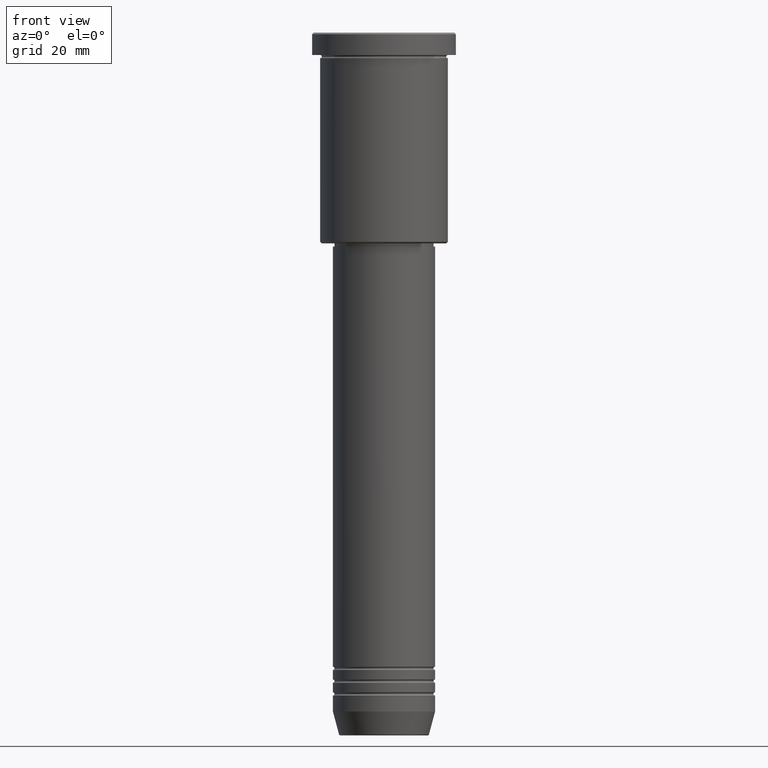
[diagram: clean part render]
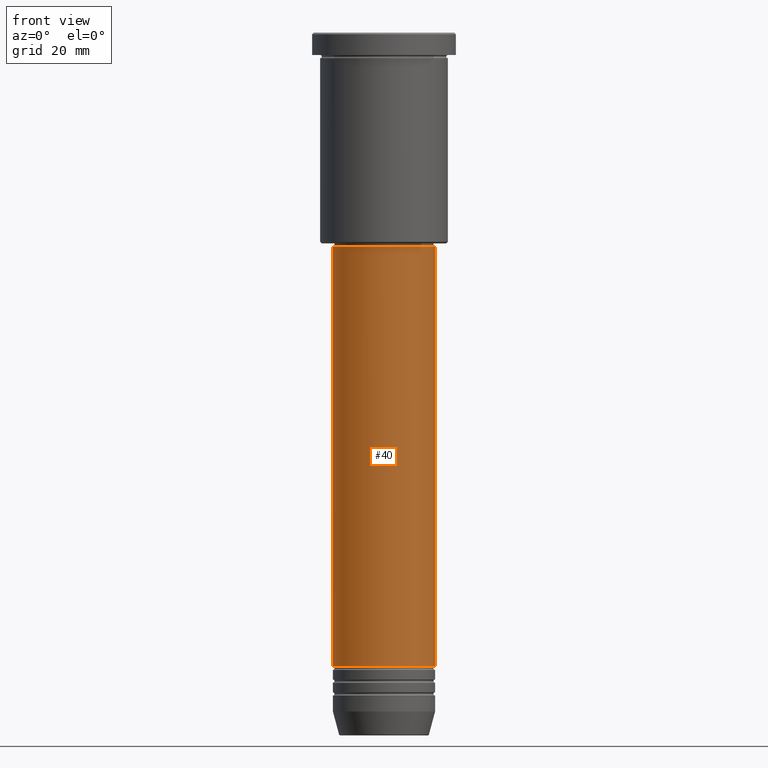
[diagram: same view with one face highlighted and labeled with its STEP entity id]
A machine part, front view. The second image highlights one B-rep face of the part: STEP entity #40.
In plain terms, the highlighted cylindrical surface (partial cylindrical patch) has radius 16 mm, axis along (-0, -0, 1).
Its self-contained STEP definition (entity closure, byte-faithful):
#7 = DIRECTION ( 'NONE',  ( 1.000000000000000000, 0.000000000000000000, 0.000000000000000000 ) ) ;
#18 = DIRECTION ( 'NONE',  ( -0.000000000000000000, -0.000000000000000000, 1.000000000000000000 ) ) ;
#39 = CARTESIAN_POINT ( 'NONE',  ( 0.000000000000000000, 0.000000000000000000, 0.000000000000000000 ) ) ;
#40 = ADVANCED_FACE ( 'NONE', ( #955 ), #295, .T. ) ;
#49 = AXIS2_PLACEMENT_3D ( 'NONE', #878, #230, #622 ) ;
#76 = CARTESIAN_POINT ( 'NONE',  ( -16.00000000000000000, 1.959434878635765131E-15, -198.4999999999999716 ) ) ;
#113 = DIRECTION ( 'NONE',  ( 1.000000000000000000, 0.000000000000000000, 0.000000000000000000 ) ) ;
#127 = EDGE_CURVE ( 'NONE', #618, #271, #389, .T. ) ;
#209 = EDGE_CURVE ( 'NONE', #269, #271, #745, .T. ) ;
#230 = DIRECTION ( 'NONE',  ( -0.000000000000000000, -0.000000000000000000, 1.000000000000000000 ) ) ;
#241 = CARTESIAN_POINT ( 'NONE',  ( 16.00000000000000000, 0.000000000000000000, -67.00000000000002842 ) ) ;
#269 = VERTEX_POINT ( 'NONE', #794 ) ;
#271 = VERTEX_POINT ( 'NONE', #241 ) ;
#282 = VECTOR ( 'NONE', #1089, 1000.000000000000000 ) ;
#287 = CARTESIAN_POINT ( 'NONE',  ( 0.000000000000000000, 0.000000000000000000, -198.4999999999999716 ) ) ;
#295 = CYLINDRICAL_SURFACE ( 'NONE', #453, 16.00000000000000000 ) ;
#344 = EDGE_CURVE ( 'NONE', #882, #269, #565, .T. ) ;
#389 = LINE ( 'NONE', #501, #479 ) ;
#453 = AXIS2_PLACEMENT_3D ( 'NONE', #39, #18, #113 ) ;
#479 = VECTOR ( 'NONE', #589, 1000.000000000000000 ) ;
#501 = CARTESIAN_POINT ( 'NONE',  ( 16.00000000000000000, 0.000000000000000000, 0.000000000000000000 ) ) ;
#505 = CARTESIAN_POINT ( 'NONE',  ( 16.00000000000000000, 0.000000000000000000, -198.4999999999999716 ) ) ;
#509 = DIRECTION ( 'NONE',  ( -0.000000000000000000, -0.000000000000000000, 1.000000000000000000 ) ) ;
#565 = LINE ( 'NONE', #1172, #282 ) ;
#589 = DIRECTION ( 'NONE',  ( -0.000000000000000000, -0.000000000000000000, 1.000000000000000000 ) ) ;
#618 = VERTEX_POINT ( 'NONE', #505 ) ;
#622 = DIRECTION ( 'NONE',  ( 1.000000000000000000, 0.000000000000000000, 0.000000000000000000 ) ) ;
#684 = AXIS2_PLACEMENT_3D ( 'NONE', #287, #509, #7 ) ;
#745 = CIRCLE ( 'NONE', #49, 16.00000000000000000 ) ;
#752 = ORIENTED_EDGE ( 'NONE', *, *, #948, .T. ) ;
#794 = CARTESIAN_POINT ( 'NONE',  ( -16.00000000000000000, 1.959434878635765131E-15, -67.00000000000002842 ) ) ;
#878 = CARTESIAN_POINT ( 'NONE',  ( 0.000000000000000000, 0.000000000000000000, -67.00000000000002842 ) ) ;
#882 = VERTEX_POINT ( 'NONE', #76 ) ;
#914 = CIRCLE ( 'NONE', #684, 16.00000000000000000 ) ;
#920 = EDGE_LOOP ( 'NONE', ( #956, #752, #983, #925 ) ) ;
#925 = ORIENTED_EDGE ( 'NONE', *, *, #209, .F. ) ;
#948 = EDGE_CURVE ( 'NONE', #882, #618, #914, .T. ) ;
#955 = FACE_OUTER_BOUND ( 'NONE', #920, .T. ) ;
#956 = ORIENTED_EDGE ( 'NONE', *, *, #344, .F. ) ;
#983 = ORIENTED_EDGE ( 'NONE', *, *, #127, .T. ) ;
#1089 = DIRECTION ( 'NONE',  ( -0.000000000000000000, -0.000000000000000000, 1.000000000000000000 ) ) ;
#1172 = CARTESIAN_POINT ( 'NONE',  ( -16.00000000000000000, 1.959434878635765131E-15, 0.000000000000000000 ) ) ;